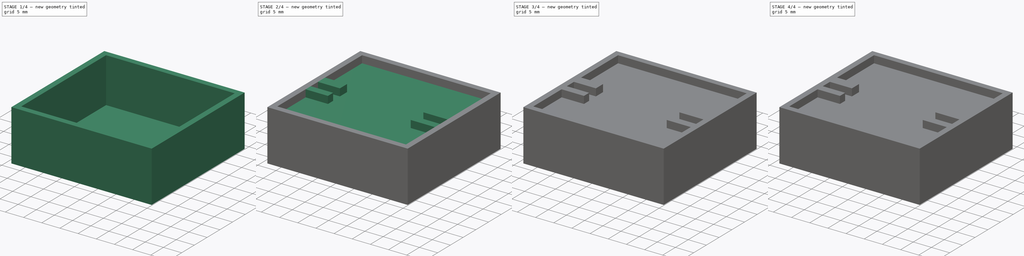
[diagram: build sequence overview — one tinted view per stage of 4, left to right]
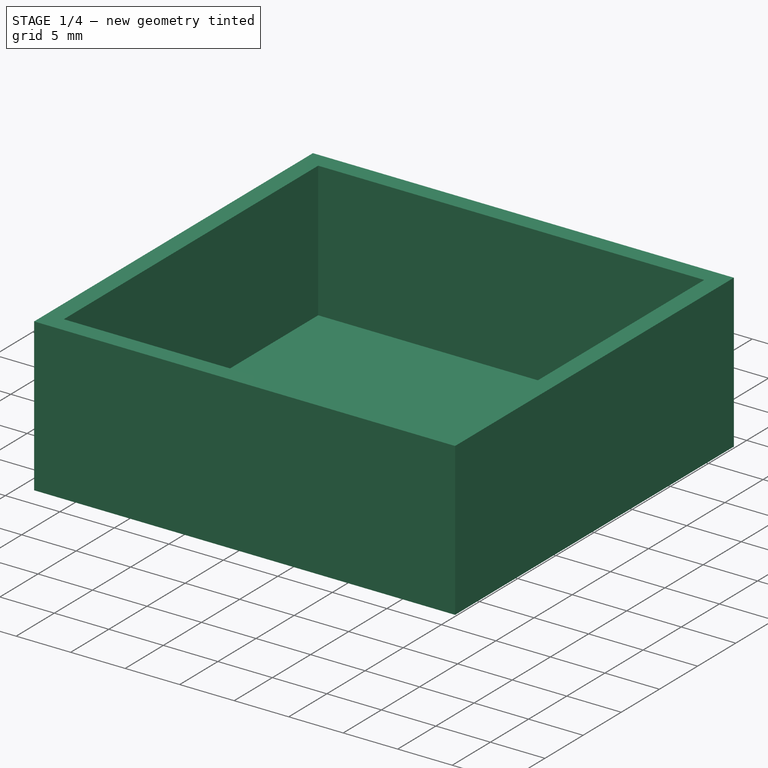
[diagram: stage 1 of 4 — iso view after this stage's code; geometry added in this stage tinted green]
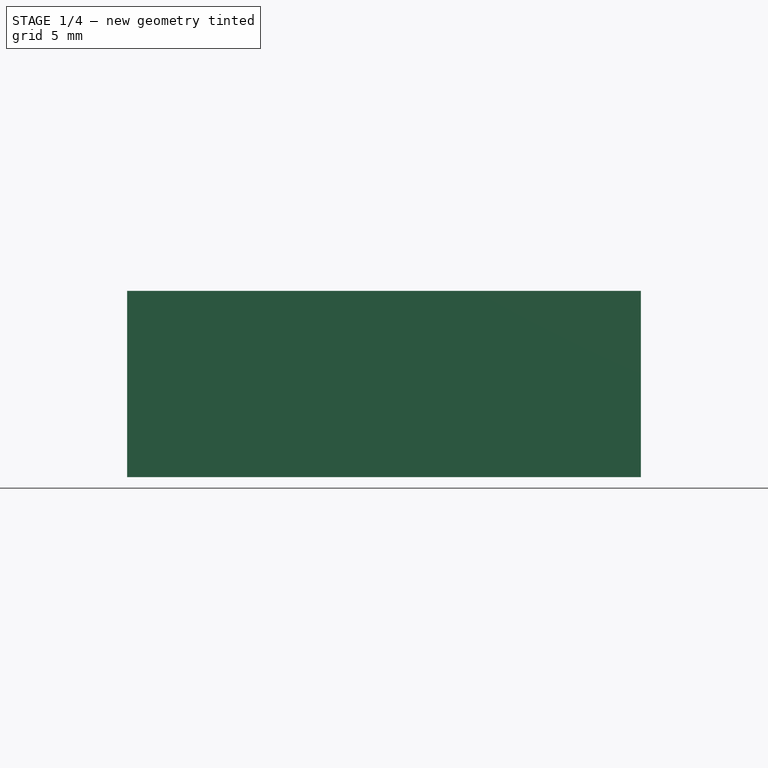
[diagram: stage 1 of 4 — front view after this stage's code; geometry added in this stage tinted green]
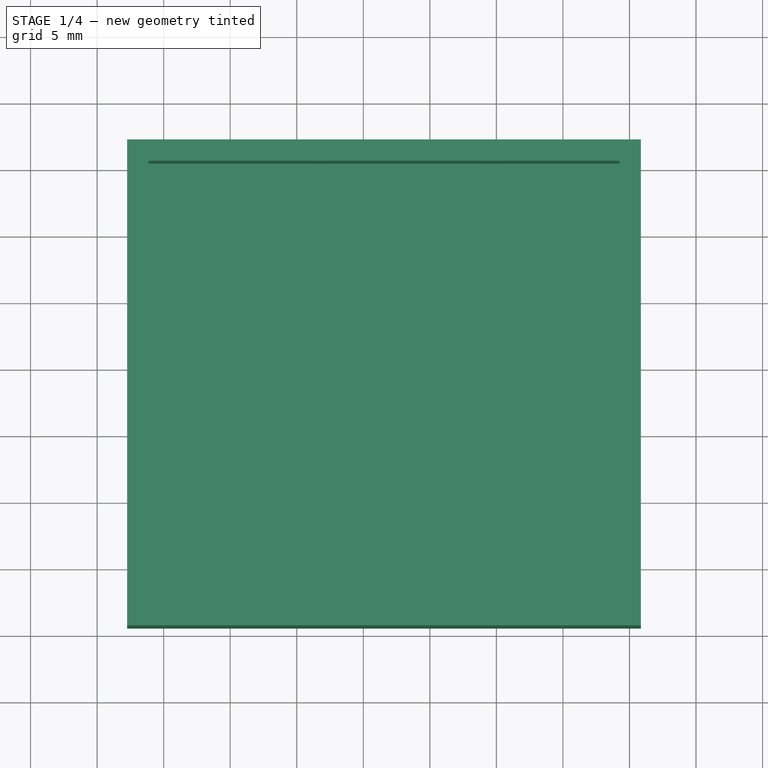
[diagram: stage 1 of 4 — top view after this stage's code; geometry added in this stage tinted green]
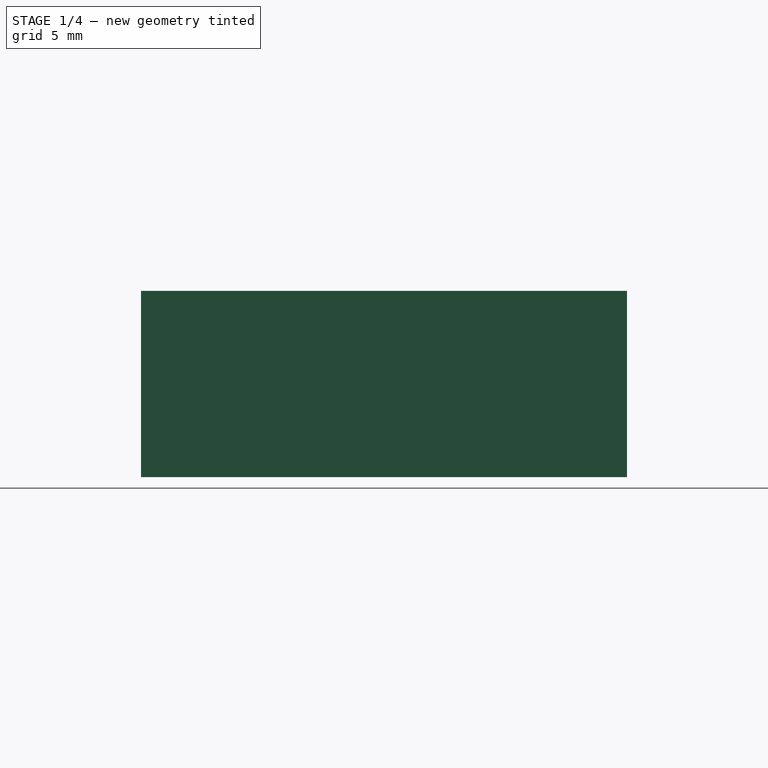
[diagram: stage 1 of 4 — right view after this stage's code; geometry added in this stage tinted green]
FCSTD DOCUMENT  (FreeCAD 0.21R33694 (Git))
Label: servo
License: All rights reserved
LicenseURL: http://en.wikipedia.org/wiki/All_rights_reserved
objects: Sketcher::SketchObject×10, PartDesign::Pad×9, PartDesign::Body×3, PartDesign::Thickness×1
note: 33 computed .brp shape members not serialized (recipe doc carries the construction recipe); baked Part::Feature solids carry a one-line shape summary decoded from their .brp

FEATURE [Sketcher::SketchObject] Sketch003
  FullyConstrained = true
  MapMode = 5
  Placement = pos=(0,0,0) rot=(1,0,0;1.5708rad)
  Support = -> [Pad002]
FEATURE [PartDesign::Body] Body
  Group = -> [Sketch,Pad,Sketch001,Pad001,Sketch002,Pad002,Sketch003,Sketch004,Pad003,Sketch005,Pad004,Sketch016,Pad005]
  Origin = -> Origin
  Placement = pos=(0,1.2,1.6) rot=(0,0,1;0rad)
  Tip = -> Pad005
FEATURE [Sketcher::SketchObject] Sketch017
  FullyConstrained = false
  MapMode = 5
  Support = -> [XY_Plane001]
  sketch-geometry (4):
    g0: LineSegment StartX=-7.74956 StartY=27.0881 StartZ=0 EndX=30.8607 EndY=27.0881 EndZ=0
    g1: LineSegment StartX=30.8607 StartY=27.0881 StartZ=0 EndX=30.8607 EndY=-9.4314 EndZ=0
    g2: LineSegment StartX=30.8607 StartY=-9.4314 StartZ=0 EndX=-7.74956 EndY=-9.4314 EndZ=0
    g3: LineSegment StartX=-7.74956 StartY=-9.4314 StartZ=0 EndX=-7.74956 EndY=27.0881 EndZ=0
  constraints (8):
    c: Coincident(g0,g1)
    c: Coincident(g1,g2)
    c: Coincident(g2,g3)
    c: Coincident(g3,g0)
    c: Horizontal(g0)
    c: Horizontal(g2)
    c: Vertical(g1)
    c: Vertical(g3)
FEATURE [PartDesign::Pad] Pad006
  Direction = (0,0,1)
  Length = 14
  Length2 = 10
  Profile = -> Sketch017
  ReferenceAxis = -> Sketch017 [N_Axis]
  Type = 0
FEATURE [PartDesign::Body] Body002
  Group = -> [Sketch018,Pad007]
  Origin = -> Origin002
  Tip = -> Pad007
FEATURE [PartDesign::Thickness] Thickness
  Base = -> Pad006 [Face6]
  BaseFeature = -> Pad006
  Intersection = false
  Join = 1
  Mode = 0
  Reversed = true
  SupportTransform = false
  Value = 1.6
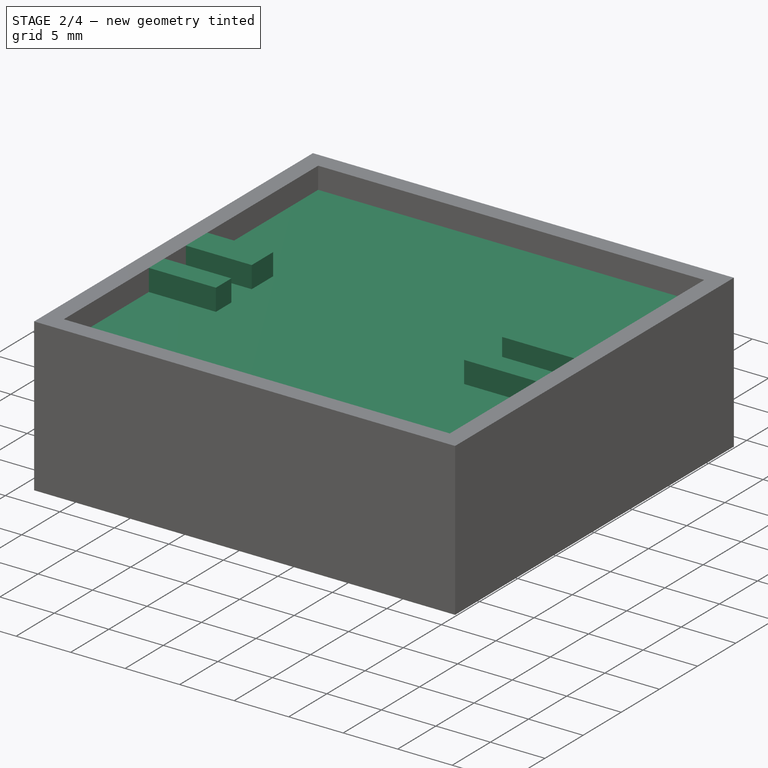
[diagram: stage 2 of 4 — iso view after this stage's code; geometry added in this stage tinted green]
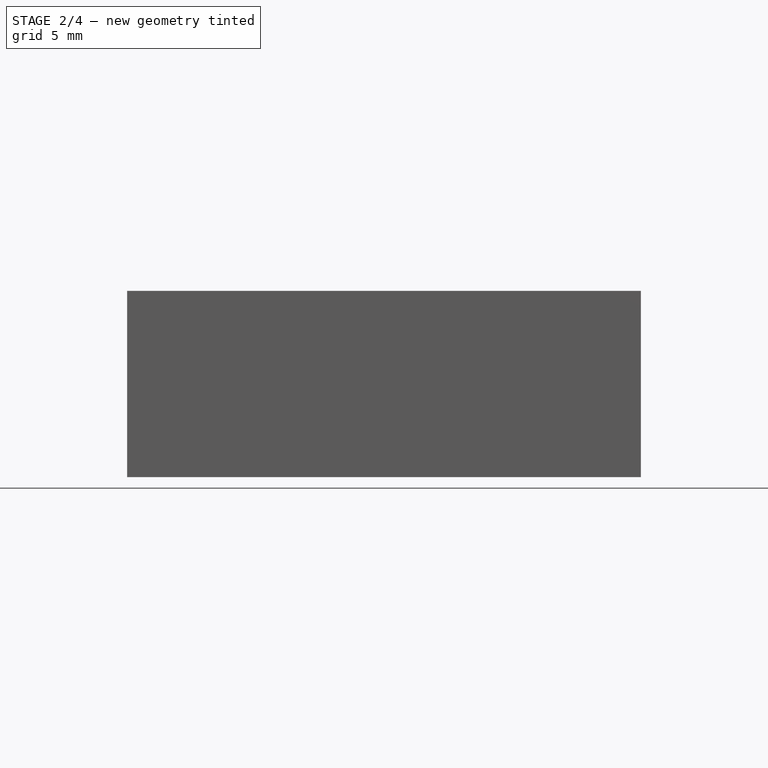
[diagram: stage 2 of 4 — front view after this stage's code; geometry added in this stage tinted green]
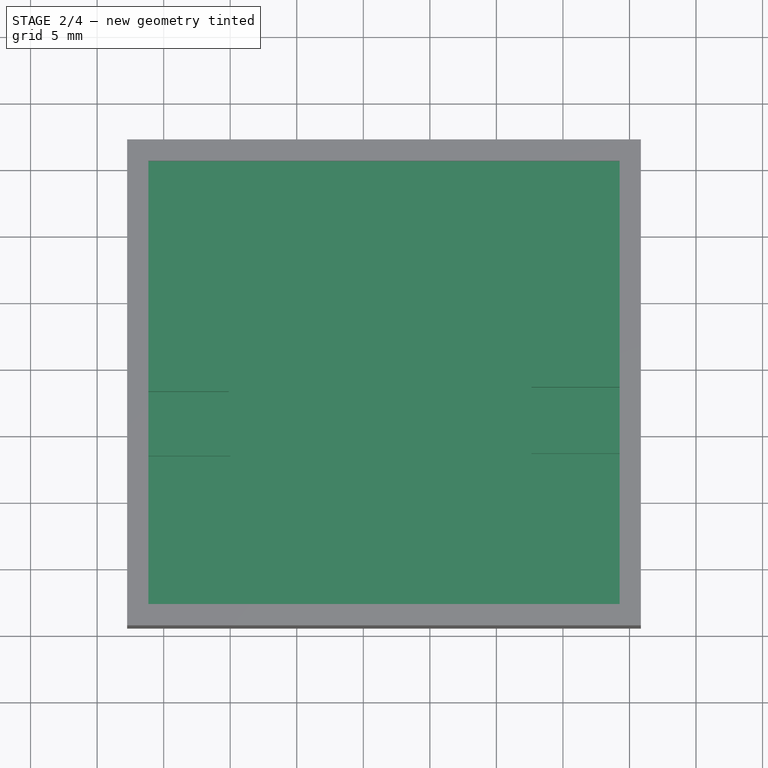
[diagram: stage 2 of 4 — top view after this stage's code; geometry added in this stage tinted green]
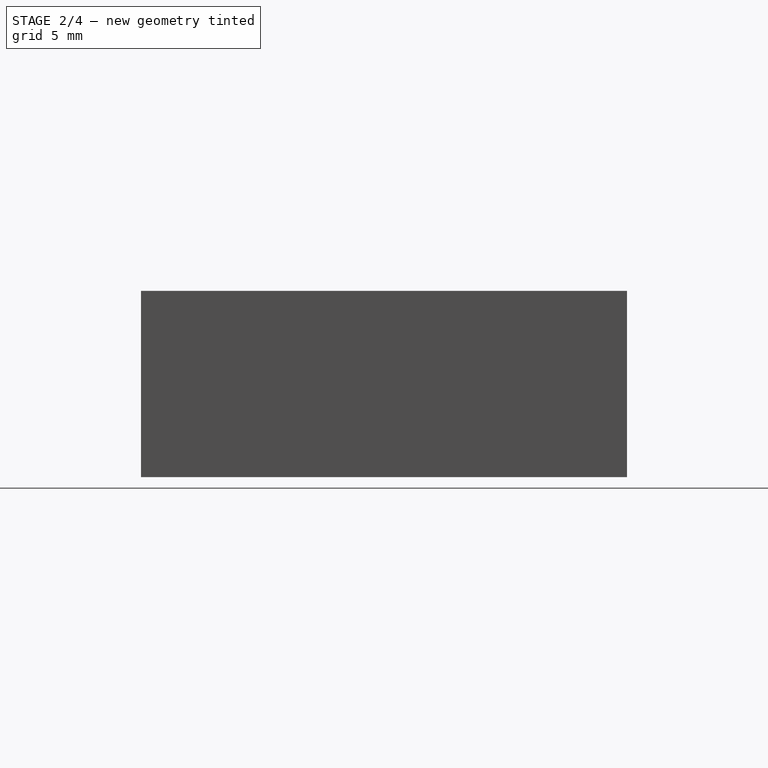
[diagram: stage 2 of 4 — right view after this stage's code; geometry added in this stage tinted green]
FEATURE [Sketcher::SketchObject] Sketch
  FullyConstrained = true
  MapMode = 5
  Support = -> [XY_Plane]
  sketch-geometry (4):
    g0: LineSegment StartX=0 StartY=0 StartZ=0 EndX=22.5 EndY=0 EndZ=0
    g1: LineSegment StartX=22.5 StartY=0 StartZ=0 EndX=22.5 EndY=22.7 EndZ=0
    g2: LineSegment StartX=22.5 StartY=22.7 StartZ=0 EndX=0 EndY=22.7 EndZ=0
    g3: LineSegment StartX=0 StartY=22.7 StartZ=0 EndX=0 EndY=0 EndZ=0
  constraints (11):
    c: Coincident(g0,g1)
    c: Coincident(g1,g2)
    c: Coincident(g2,g3)
    c: Coincident(g3,g0)
    c: Horizontal(g0)
    c: Horizontal(g2)
    c: Vertical(g1)
    c: Vertical(g3)
    c: Coincident(g0,g-1)
    c: DistanceX(g2,g2) = 22.5
    c: DistanceY(g1,g1) = 22.7
FEATURE [PartDesign::Pad] Pad
  Direction = (0,0,1)
  Length = 11.8
  Length2 = 10
  Profile = -> Sketch
  ReferenceAxis = -> Sketch [N_Axis]
  Type = 0
FEATURE [Sketcher::SketchObject] Sketch018
  FullyConstrained = false
  MapMode = 5
  Support = -> [XY_Plane002]
  sketch-geometry (4):
    g0: LineSegment StartX=-7.74956 StartY=27.0881 StartZ=0 EndX=30.8607 EndY=27.0881 EndZ=0
    g1: LineSegment StartX=30.8607 StartY=27.0881 StartZ=0 EndX=30.8607 EndY=-9.4314 EndZ=0
    g2: LineSegment StartX=30.8607 StartY=-9.4314 StartZ=0 EndX=-7.74956 EndY=-9.4314 EndZ=0
    g3: LineSegment StartX=-7.74956 StartY=-9.4314 StartZ=0 EndX=-7.74956 EndY=27.0881 EndZ=0
  constraints (8):
    c: Coincident(g0,g1)
    c: Coincident(g1,g2)
    c: Coincident(g2,g3)
    c: Coincident(g3,g0)
    c: Horizontal(g0)
    c: Horizontal(g2)
    c: Vertical(g1)
    c: Vertical(g3)
FEATURE [PartDesign::Pad] Pad007
  Direction = (0,0,1)
  Length = 12
  Length2 = 10
  Profile = -> Sketch018
  ReferenceAxis = -> Sketch018 [N_Axis]
  Type = 0
FEATURE [Sketcher::SketchObject] Sketch021
  ExternalGeometry = -> [Thickness]
  FullyConstrained = false
  MapMode = 5
  Placement = pos=(0,0,1.6) rot=(0,0,1;0rad)
  Support = -> [Thickness]
  sketch-geometry (16):
    g0: LineSegment StartX=-6.14956 StartY=10.9638 StartZ=0 EndX=-0.106128 EndY=10.9638 EndZ=0
    g1: LineSegment StartX=-0.106128 StartY=10.9638 StartZ=0 EndX=-0.106128 EndY=8.15304 EndZ=0
    g2: LineSegment StartX=-0.106128 StartY=8.15304 StartZ=0 EndX=-6.14956 EndY=8.15304 EndZ=0
    g3: LineSegment StartX=-6.14956 StartY=8.15304 StartZ=0 EndX=-6.14956 EndY=10.9638 EndZ=0
    g4: LineSegment StartX=-6.14956 StartY=3.3087 StartZ=0 EndX=0 EndY=3.3087 EndZ=0
    g5: LineSegment StartX=0 StartY=3.3087 StartZ=0 EndX=0 EndY=5.33627 EndZ=0
    g6: LineSegment StartX=0 StartY=5.33627 StartZ=0 EndX=-6.14956 EndY=5.33627 EndZ=0
    g7: LineSegment StartX=-6.14956 StartY=5.33627 StartZ=0 EndX=-6.14956 EndY=3.3087 EndZ=0
    g8: LineSegment StartX=29.2607 StartY=10.6733 StartZ=0 EndX=22.6404 EndY=10.6733 EndZ=0
    g9: LineSegment StartX=22.6404 StartY=10.6733 StartZ=0 EndX=22.6404 EndY=8.47828 EndZ=0
    g10: LineSegment StartX=22.6404 StartY=8.47828 StartZ=0 EndX=29.2607 EndY=8.47828 EndZ=0
    g11: LineSegment StartX=29.2607 StartY=8.47828 StartZ=0 EndX=29.2607 EndY=10.6733 EndZ=0
    g12: LineSegment StartX=29.2607 StartY=5.57967 StartZ=0 EndX=22.6404 EndY=5.57967 EndZ=0
    g13: LineSegment StartX=22.6404 StartY=5.57967 StartZ=0 EndX=22.6404 EndY=3.49718 EndZ=0
    g14: LineSegment StartX=22.6404 StartY=3.49718 StartZ=0 EndX=29.2607 EndY=3.49718 EndZ=0
    g15: LineSegment StartX=29.2607 StartY=3.49718 StartZ=0 EndX=29.2607 EndY=5.57967 EndZ=0
  constraints (37):
    c: Coincident(g0,g1)
    c: Coincident(g1,g2)
    c: Coincident(g2,g3)
    c: Coincident(g3,g0)
    c: Horizontal(g0)
    c: Horizontal(g2)
    c: Vertical(g1)
    c: Vertical(g3)
    c: PointOnObject(g0,g-3)
    c: Coincident(g4,g5)
    c: Coincident(g5,g6)
    c: Coincident(g6,g7)
    c: Coincident(g7,g4)
    c: Horizontal(g4)
    c: Horizontal(g6)
    c: Vertical(g5)
    c: Vertical(g7)
    c: PointOnObject(g4,g-3)
    c: PointOnObject(g5,g-2)
    c: Coincident(g8,g9)
    c: Coincident(g9,g10)
    c: Coincident(g10,g11)
    c: Coincident(g11,g8)
    c: Horizontal(g8)
    c: Horizontal(g10)
    c: Vertical(g9)
    c: Vertical(g11)
    c: PointOnObject(g8,g-4)
    c: Coincident(g12,g13)
    c: Coincident(g13,g14)
    c: Coincident(g14,g15)
    c: Coincident(g15,g12)
    c: Horizontal(g12)
    c: Horizontal(g14)
    c: Vertical(g13)
    c: Vertical(g15)
    c: PointOnObject(g12,g-4)
FEATURE [PartDesign::Pad] Pad008
  BaseFeature = -> Thickness
  Direction = (0,0,1)
  Length = 12.4
  Length2 = 10
  Profile = -> Sketch021
  ReferenceAxis = -> Sketch021 [N_Axis]
  Type = 0
FEATURE [PartDesign::Body] Body001
  Group = -> [Sketch017,Pad006,Thickness,Sketch021,Pad008]
  Origin = -> Origin001
  Tip = -> Pad008
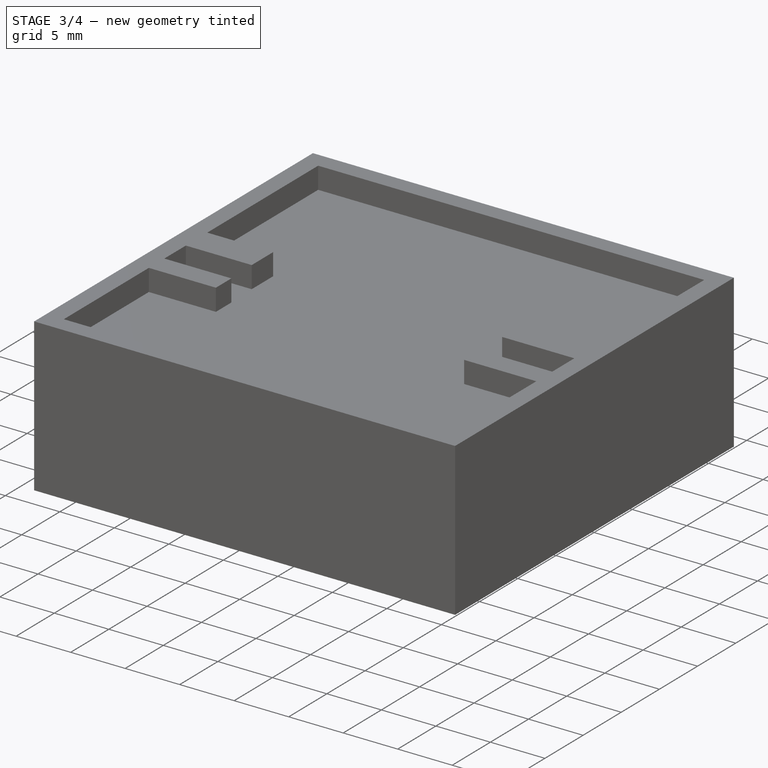
[diagram: stage 3 of 4 — iso view after this stage's code; geometry added in this stage tinted green]
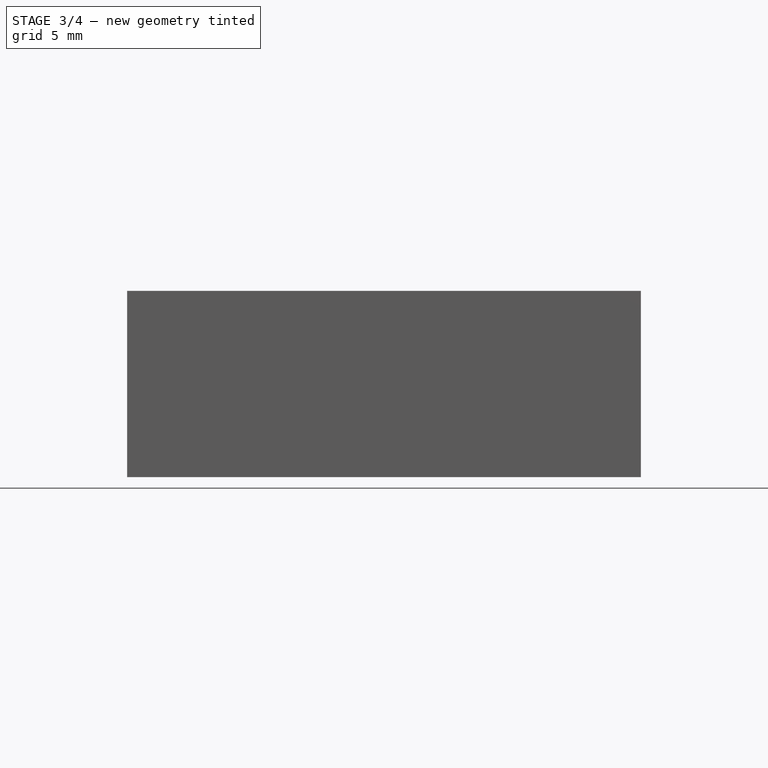
[diagram: stage 3 of 4 — front view after this stage's code; geometry added in this stage tinted green]
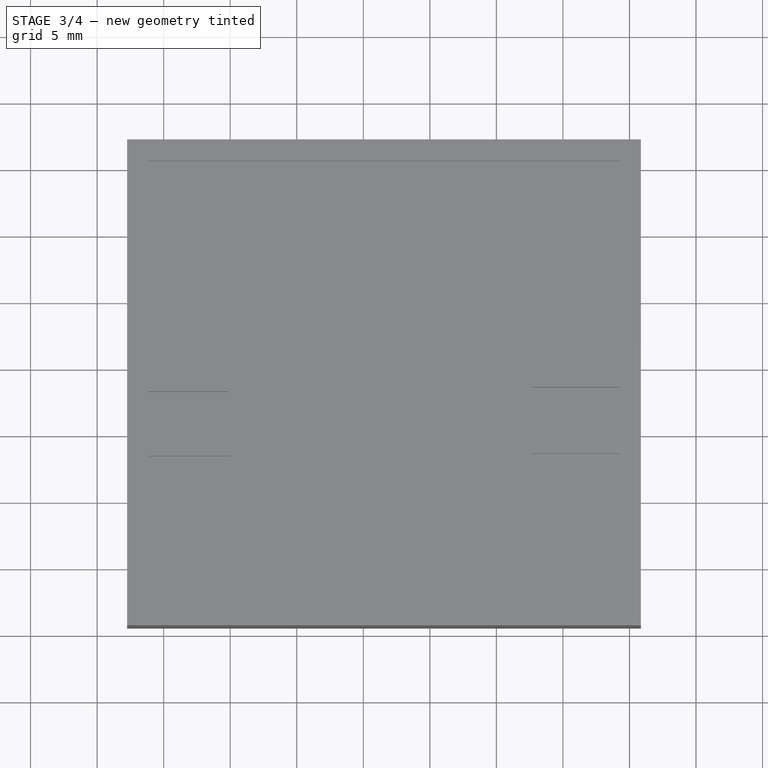
[diagram: stage 3 of 4 — top view after this stage's code; geometry added in this stage tinted green]
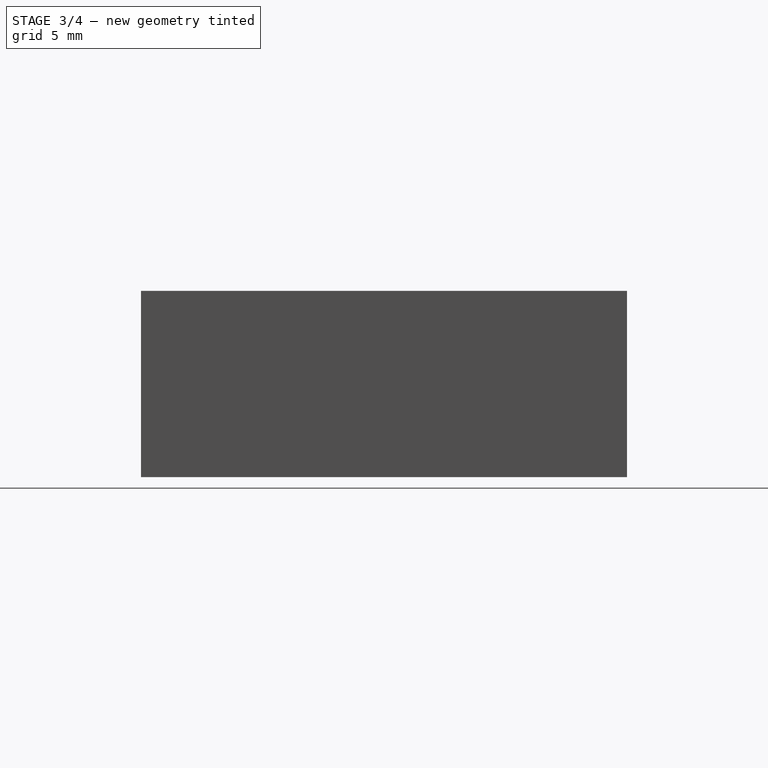
[diagram: stage 3 of 4 — right view after this stage's code; geometry added in this stage tinted green]
FEATURE [Sketcher::SketchObject] Sketch001
  ExternalGeometry = -> [Pad]
  FullyConstrained = false
  MapMode = 5
  Placement = pos=(22.5,0,0) rot=(0.57735,0.57735,0.57735;2.0944rad)
  Support = -> [Pad]
  sketch-geometry (4):
    g0: LineSegment StartX=4.6 StartY=0 StartZ=0 EndX=7.1 EndY=0 EndZ=0
    g1: LineSegment StartX=7.1 StartY=0 StartZ=0 EndX=7.1 EndY=11.7887 EndZ=0
    g2: LineSegment StartX=7.1 StartY=11.7887 StartZ=0 EndX=4.6 EndY=11.7887 EndZ=0
    g3: LineSegment StartX=4.6 StartY=11.7887 StartZ=0 EndX=4.6 EndY=0 EndZ=0
  constraints (11):
    c: Coincident(g0,g1)
    c: Coincident(g1,g2)
    c: Coincident(g2,g3)
    c: Coincident(g3,g0)
    c: Horizontal(g0)
    c: Horizontal(g2)
    c: Vertical(g1)
    c: Vertical(g3)
    c: PointOnObject(g0,g-1)
    c: DistanceX(g2,g1) = 2.5
    c: DistanceX(g1,g-3) = 15.6
FEATURE [PartDesign::Pad] Pad001
  BaseFeature = -> Pad
  Direction = (1,0,0)
  Length = 4.7
  Length2 = 10
  Profile = -> Sketch001
  ReferenceAxis = -> Sketch001 [N_Axis]
  Type = 0
FEATURE [Sketcher::SketchObject] Sketch002
  ExternalGeometry = -> [Pad001]
  FullyConstrained = true
  MapMode = 5
  Placement = pos=(0,0,0) rot=(0.57735,-0.57735,-0.57735;2.0944rad)
  Support = -> [Pad001]
  sketch-geometry (4):
    g0: LineSegment StartX=-4.3 StartY=0 StartZ=0 EndX=-6.8 EndY=0 EndZ=0
    g1: LineSegment StartX=-6.8 StartY=0 StartZ=0 EndX=-6.8 EndY=11.8 EndZ=0
    g2: LineSegment StartX=-6.8 StartY=11.8 StartZ=0 EndX=-4.3 EndY=11.8 EndZ=0
    g3: LineSegment StartX=-4.3 StartY=11.8 StartZ=0 EndX=-4.3 EndY=0 EndZ=0
  constraints (12):
    c: Coincident(g0,g1)
    c: Coincident(g1,g2)
    c: Coincident(g2,g3)
    c: Coincident(g3,g0)
    c: Horizontal(g0)
    c: Horizontal(g2)
    c: Vertical(g1)
    c: Vertical(g3)
    c: PointOnObject(g0,g-1)
    c: DistanceY(g2,g-3) = 0
    c: DistanceX(g-3,g1) = 15.9
    c: DistanceX(g0,g0) = 2.5
FEATURE [PartDesign::Pad] Pad002
  BaseFeature = -> Pad001
  Direction = (-1,0,0)
  Length = 4.7
  Length2 = 10
  Profile = -> Sketch002
  ReferenceAxis = -> Sketch002 [N_Axis]
  Type = 0
FEATURE [Sketcher::SketchObject] Sketch004
  FullyConstrained = true
  MapMode = 5
  Placement = pos=(0,0,0) rot=(1,0,0;1.5708rad)
  Support = -> [Pad002]
  sketch-geometry (1):
    g0: Circle CenterX=5.9 CenterY=5.9 CenterZ=0 NormalX=0 NormalY=0 NormalZ=1 AngleXU=0 Radius=5.9
  constraints (3):
    c: Diameter(g0) = 11.8
    c: DistanceY(g-1,g0) = 5.9
    c: DistanceX(g-1,g0) = 5.9
FEATURE [PartDesign::Pad] Pad003
  BaseFeature = -> Pad002
  Direction = (0,-1,2e-16)
  Length = 4
  Length2 = 10
  Profile = -> Sketch004
  ReferenceAxis = -> Sketch004 [N_Axis]
  Type = 0
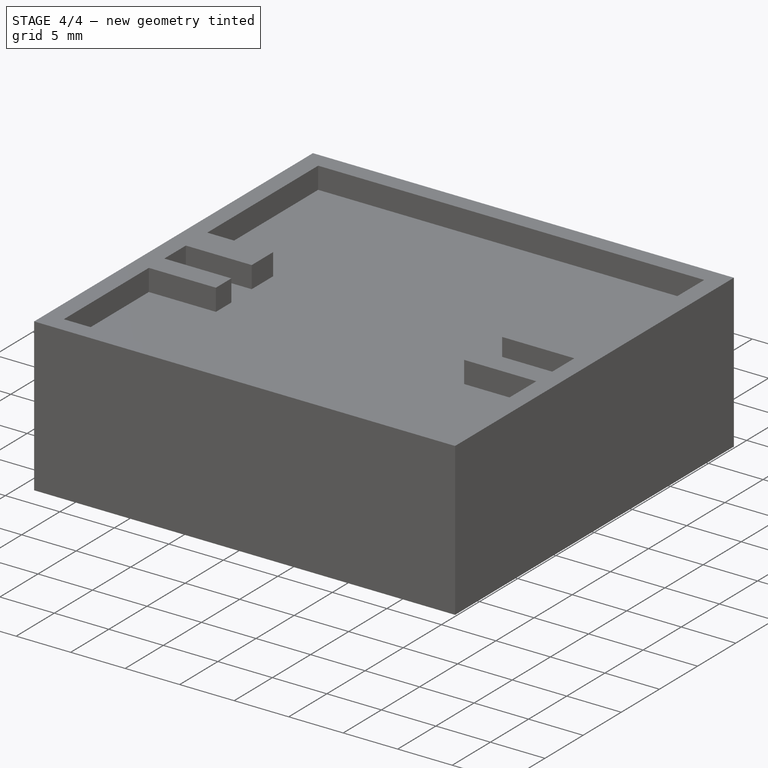
[diagram: stage 4 of 4 — iso view after this stage's code; geometry added in this stage tinted green]
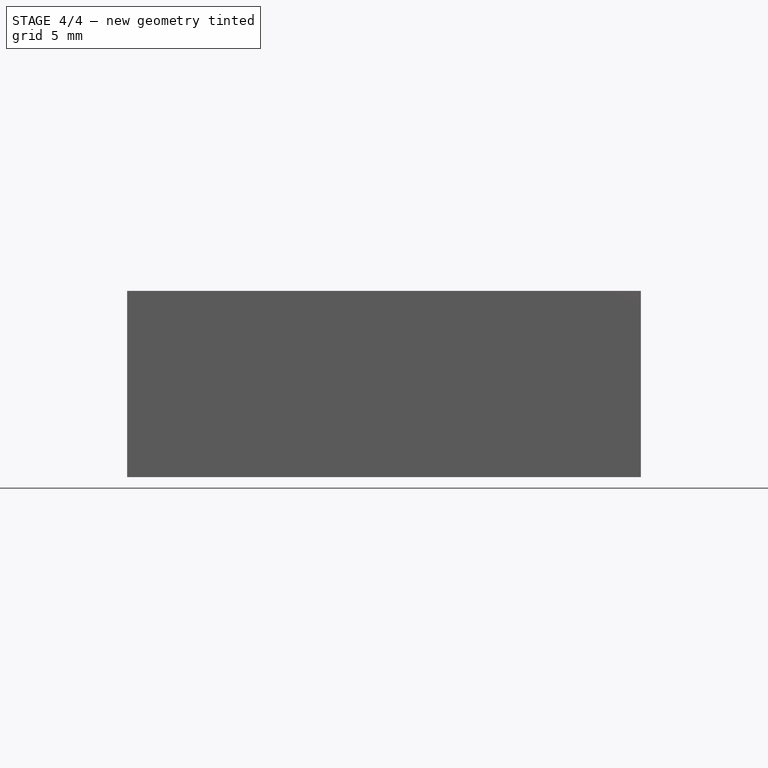
[diagram: stage 4 of 4 — front view after this stage's code; geometry added in this stage tinted green]
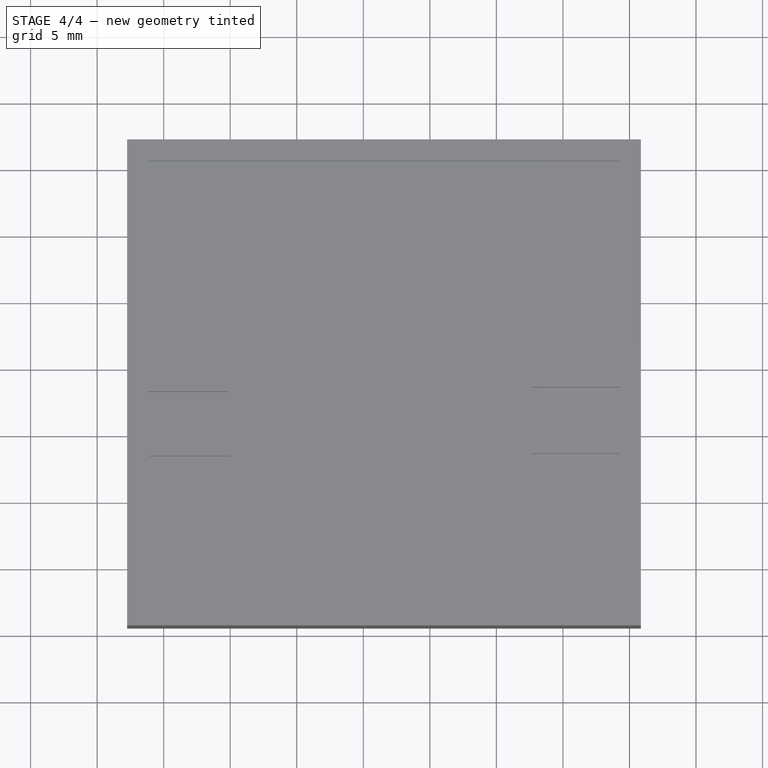
[diagram: stage 4 of 4 — top view after this stage's code; geometry added in this stage tinted green]
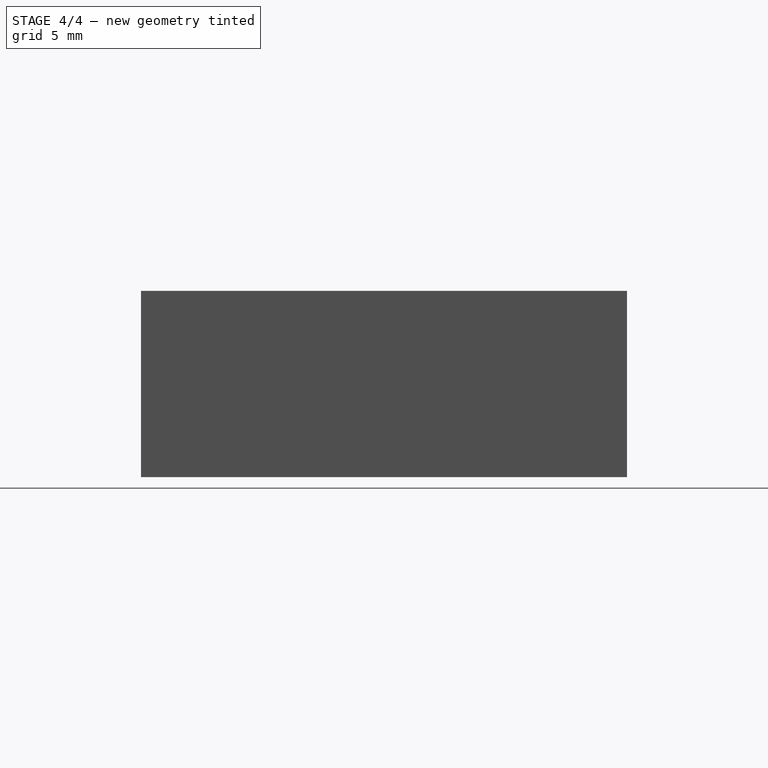
[diagram: stage 4 of 4 — right view after this stage's code; geometry added in this stage tinted green]
FEATURE [Sketcher::SketchObject] Sketch005
  ExternalGeometry = -> [Pad003]
  FullyConstrained = true
  MapMode = 5
  Placement = pos=(0,-4,9e-16) rot=(1,0,0;1.5708rad)
  Support = -> [Pad003]
  sketch-geometry (1):
    g0: Circle CenterX=5.9 CenterY=5.9 CenterZ=0 NormalX=0 NormalY=0 NormalZ=1 AngleXU=0 Radius=2.3
  constraints (2):
    c: Coincident(g0,g-3)
    c: Diameter(g0) = 4.6
FEATURE [PartDesign::Pad] Pad004
  BaseFeature = -> Pad003
  Direction = (0,-1,2e-16)
  Length = 3.2
  Length2 = 10
  Profile = -> Sketch005
  ReferenceAxis = -> Sketch005 [N_Axis]
  Type = 0
FEATURE [Sketcher::SketchObject] Sketch016
  ExternalGeometry = -> [Pad004]
  FullyConstrained = true
  MapMode = 5
  Placement = pos=(0,0,0) rot=(1,0,0;1.5708rad)
  Support = -> [Pad004]
  sketch-geometry (4):
    g0: ArcOfCircle CenterX=7.2 CenterY=5.9 CenterZ=0 NormalX=0 NormalY=0 NormalZ=1 AngleXU=0 Radius=2.5 StartAngle=1.5708 EndAngle=4.71239
    g1: ArcOfCircle CenterX=12.2 CenterY=5.9 CenterZ=0 NormalX=0 NormalY=0 NormalZ=1 AngleXU=0 Radius=2.5 StartAngle=4.71239 EndAngle=7.85398
    g2: LineSegment StartX=7.2 StartY=3.4 StartZ=0 EndX=12.2 EndY=3.4 EndZ=0
    g3: LineSegment StartX=12.2 StartY=8.4 StartZ=0 EndX=7.2 EndY=8.4 EndZ=0
  constraints (10):
    c: Tangent(g0,g2) = -1.5708
    c: Tangent(g2,g1) = -1.5708
    c: Tangent(g1,g3) = -1.5708
    c: Tangent(g3,g0) = -1.5708
    c: Equal(g0,g1)
    c: Horizontal(g2)
    c: Diameter(g1) = 5
    c: DistanceX(g-3,g1) = 6.3
    c: DistanceY(g-3,g0) = 0
    c: DistanceX(g3,g3) = 5
FEATURE [PartDesign::Pad] Pad005
  BaseFeature = -> Pad004
  Direction = (0,-1,2e-16)
  Length = 4
  Length2 = 10
  Profile = -> Sketch016
  ReferenceAxis = -> Sketch016 [N_Axis]
  Type = 0
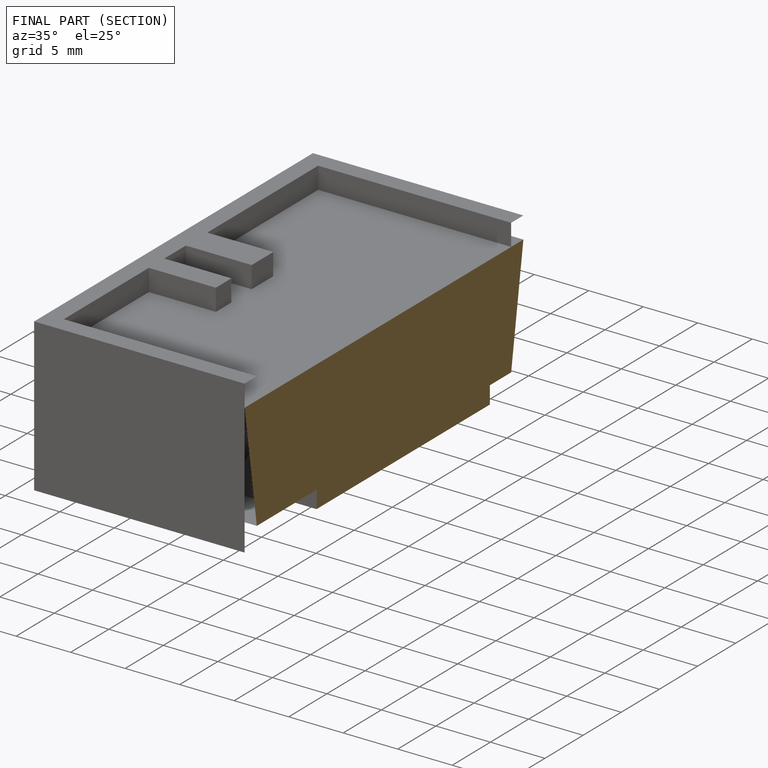
[diagram: finished part — half-section view (interior)]
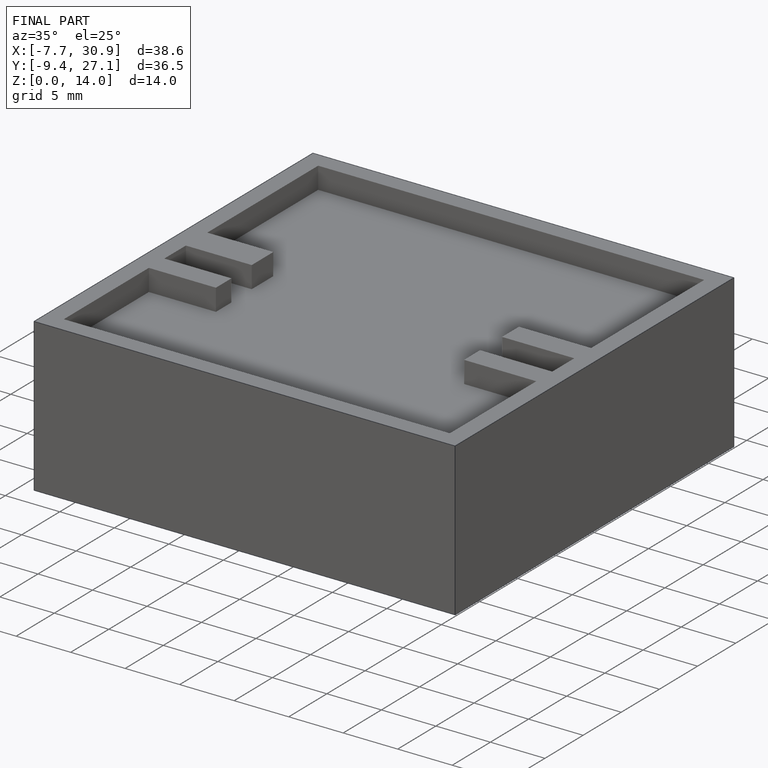
[diagram: finished part — iso view with bounding-box wireframe]
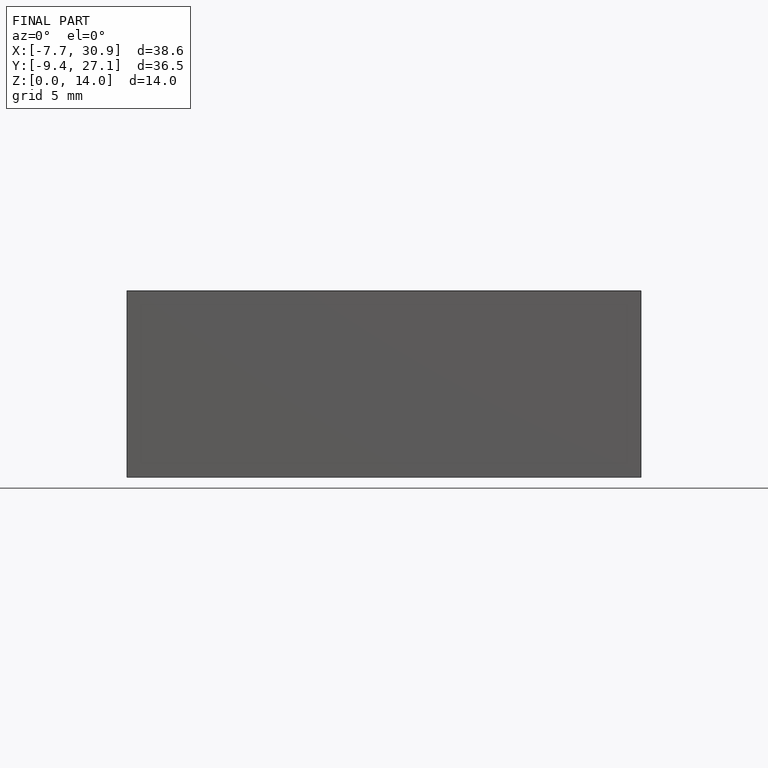
[diagram: finished part — front view with bounding-box wireframe]
